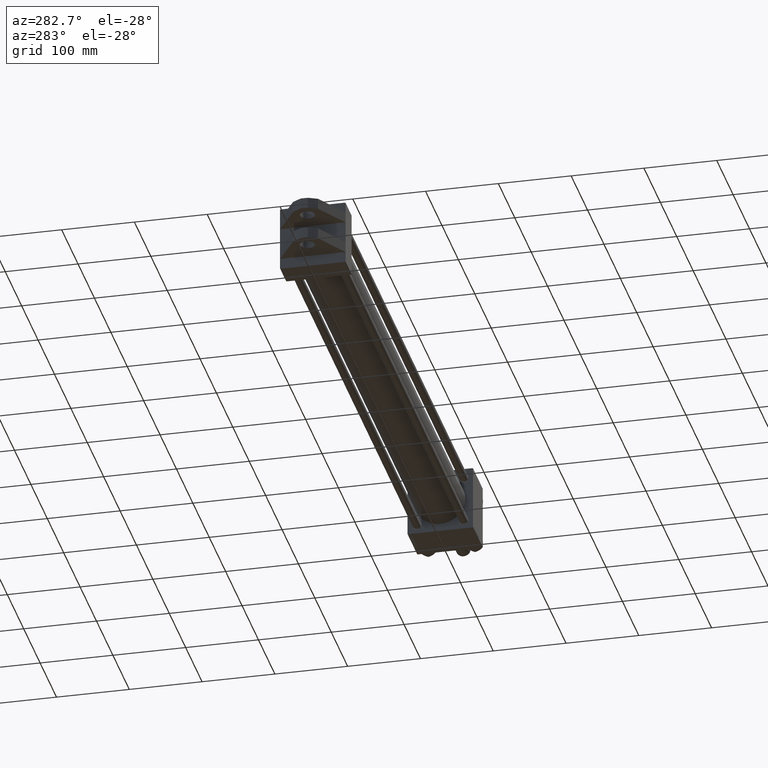
[diagram: clean part render]
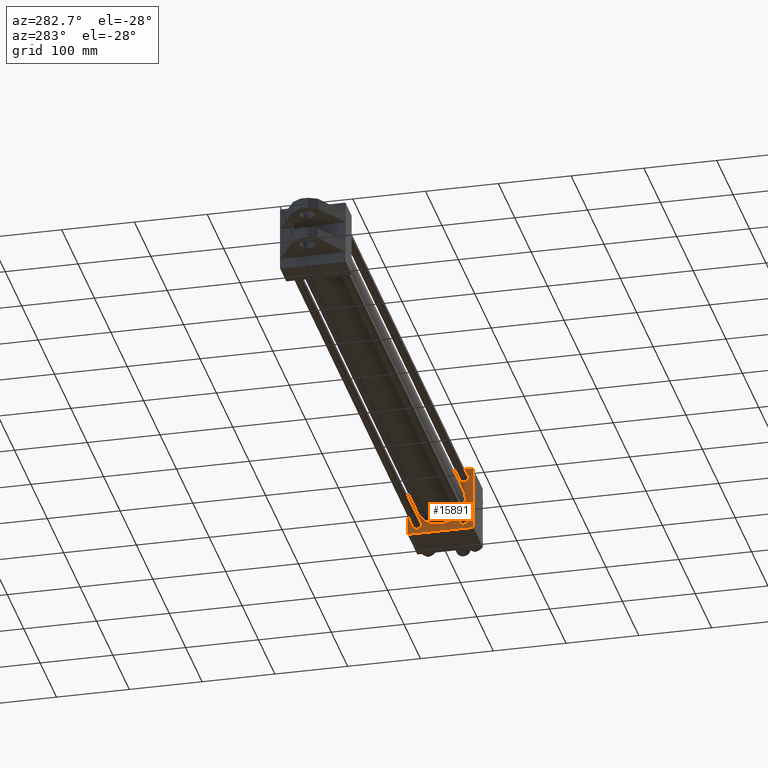
[diagram: same view with one face highlighted and labeled with its STEP entity id]
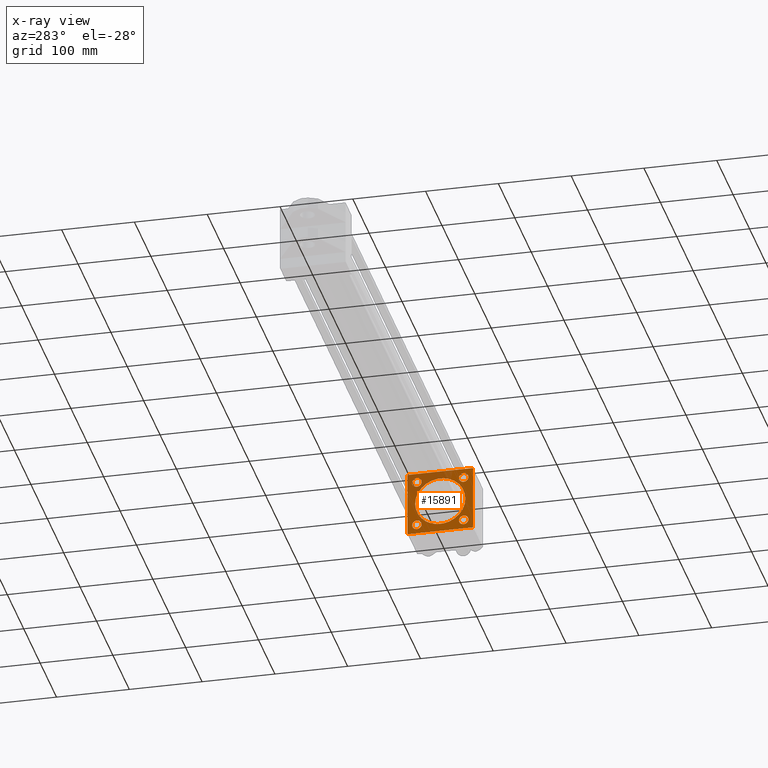
[diagram: x-ray of the same camera — body ghosted, the highlighted face saturated]
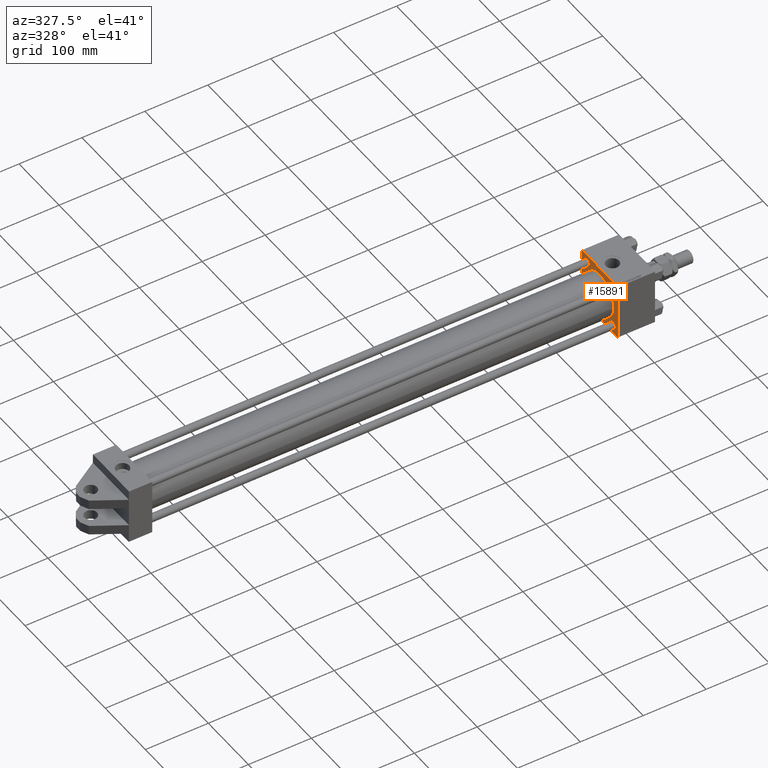
[diagram: same view with one face highlighted and labeled with its STEP entity id]
A machine part, auxiliary view. The second image highlights one B-rep face of the part: STEP entity #15891.
The next image is the same camera in x-ray: the body ghosted, the highlighted face saturated — about 25% of this face is hidden behind the body in this view.
A second angle (auxiliary view) of the same face is appended — the face is thin or edge-on in the first view.
In plain terms, the highlighted planar face has unit normal (-1, 0, -0).
Its self-contained STEP definition (entity closure, byte-faithful):
#728 = DIRECTION ( 'NONE',  ( 0.000000000000000000, 0.000000000000000000, 1.000000000000000000 ) ) ;
#884 = ORIENTED_EDGE ( 'NONE', *, *, #33320, .T. ) ;
#898 = EDGE_CURVE ( 'NONE', #13371, #39654, #19193, .T. ) ;
#1060 = DIRECTION ( 'NONE',  ( 0.000000000000000000, 0.000000000000000000, 1.000000000000000000 ) ) ;
#1383 = CIRCLE ( 'NONE', #33724, 34.49999999999999289 ) ;
#1980 = EDGE_CURVE ( 'NONE', #39654, #19199, #37620, .T. ) ;
#2693 = VERTEX_POINT ( 'NONE', #10979 ) ;
#2832 = ORIENTED_EDGE ( 'NONE', *, *, #4180, .T. ) ;
#2844 = VERTEX_POINT ( 'NONE', #38627 ) ;
#3756 = DIRECTION ( 'NONE',  ( 1.000000000000000000, 0.000000000000000000, 0.000000000000000000 ) ) ;
#4180 = EDGE_CURVE ( 'NONE', #6889, #25147, #1383, .T. ) ;
#4351 = DIRECTION ( 'NONE',  ( 0.000000000000000000, 0.000000000000000000, 1.000000000000000000 ) ) ;
#4419 = CARTESIAN_POINT ( 'NONE',  ( 777.0000000000000000, 44.75000000000496669, -44.74999999999503331 ) ) ;
#4581 = EDGE_LOOP ( 'NONE', ( #2832, #8012 ) ) ;
#5031 = DIRECTION ( 'NONE',  ( 1.000000000000000000, 0.000000000000000000, 0.000000000000000000 ) ) ;
#5318 = CARTESIAN_POINT ( 'NONE',  ( 777.0000000000000000, 32.14999999999999147, -25.65000000000017266 ) ) ;
#6889 = VERTEX_POINT ( 'NONE', #31429 ) ;
#7524 = FACE_BOUND ( 'NONE', #4581, .T. ) ;
#7724 = DIRECTION ( 'NONE',  ( 1.000000000000000000, 0.000000000000000000, 0.000000000000000000 ) ) ;
#8012 = ORIENTED_EDGE ( 'NONE', *, *, #31723, .T. ) ;
#8383 = CIRCLE ( 'NONE', #32405, 6.499999999999950262 ) ;
#8454 = VECTOR ( 'NONE', #40364, 1000.000000000000000 ) ;
#8519 = CARTESIAN_POINT ( 'NONE',  ( 777.0000000000000000, -32.14999999999999147, 32.14999999999999147 ) ) ;
#8777 = VERTEX_POINT ( 'NONE', #25383 ) ;
#9040 = EDGE_CURVE ( 'NONE', #11871, #28193, #48689, .T. ) ;
#9135 = CARTESIAN_POINT ( 'NONE',  ( 777.0000000000000000, -44.74999999999996447, 44.74999999999996447 ) ) ;
#9295 = DIRECTION ( 'NONE',  ( 1.000000000000000000, 0.000000000000000000, 0.000000000000000000 ) ) ;
#9300 = DIRECTION ( 'NONE',  ( 0.000000000000000000, 0.000000000000000000, 1.000000000000000000 ) ) ;
#9556 = CARTESIAN_POINT ( 'NONE',  ( 777.0000000000000000, 32.14999999999999147, 25.65000000000005542 ) ) ;
#9916 = AXIS2_PLACEMENT_3D ( 'NONE', #23348, #28270, #27495 ) ;
#9969 = CARTESIAN_POINT ( 'NONE',  ( 777.0000000000000000, 44.74999999999504041, 44.75000000000498090 ) ) ;
#10094 = DIRECTION ( 'NONE',  ( 0.000000000000000000, 7.709882115452478166E-17, -1.000000000000000000 ) ) ;
#10171 = ORIENTED_EDGE ( 'NONE', *, *, #20579, .T. ) ;
#10589 = DIRECTION ( 'NONE',  ( 1.000000000000000000, 0.000000000000000000, 0.000000000000000000 ) ) ;
#10604 = EDGE_CURVE ( 'NONE', #38870, #17387, #40564, .T. ) ;
#10644 = CARTESIAN_POINT ( 'NONE',  ( 777.0000000000000000, -32.15000000000001279, -32.15000000000000568 ) ) ;
#10979 = CARTESIAN_POINT ( 'NONE',  ( 777.0000000000000000, -45.00000000000000000, 44.49999999999992895 ) ) ;
#11725 = VERTEX_POINT ( 'NONE', #34663 ) ;
#11871 = VERTEX_POINT ( 'NONE', #33341 ) ;
#11897 = CARTESIAN_POINT ( 'NONE',  ( 777.0000000000000000, 32.14999999999999147, -38.64999999999983515 ) ) ;
#12916 = VECTOR ( 'NONE', #41503, 1000.000000000000000 ) ;
#13168 = CARTESIAN_POINT ( 'NONE',  ( 777.0000000000000000, 45.00000000000001421, -44.49999999999991473 ) ) ;
#13335 = CARTESIAN_POINT ( 'NONE',  ( 777.0000000000000000, -3.469446951953614189E-15, 0.000000000000000000 ) ) ;
#13371 = VERTEX_POINT ( 'NONE', #45414 ) ;
#13388 = ORIENTED_EDGE ( 'NONE', *, *, #9040, .T. ) ;
#13435 = CARTESIAN_POINT ( 'NONE',  ( 777.0000000000000000, 7.555845051047534515E-16, -34.49999999999999289 ) ) ;
#14071 = AXIS2_PLACEMENT_3D ( 'NONE', #16517, #31584, #47163 ) ;
#15001 = CARTESIAN_POINT ( 'NONE',  ( 777.0000000000000000, -32.15000000000001279, -32.15000000000000568 ) ) ;
#15680 = VERTEX_POINT ( 'NONE', #23926 ) ;
#15891 = ADVANCED_FACE ( 'NONE', ( #24380, #36320, #31918, #19717, #7524, #39196 ), #19973, .T. ) ;
#15932 = CIRCLE ( 'NONE', #44958, 6.499999999999950262 ) ;
#16088 = EDGE_CURVE ( 'NONE', #2693, #19199, #46687, .T. ) ;
#16517 = CARTESIAN_POINT ( 'NONE',  ( 777.0000000000000000, 32.14999999999999147, -32.15000000000000568 ) ) ;
#16788 = EDGE_CURVE ( 'NONE', #2693, #15680, #24712, .T. ) ;
#16867 = ORIENTED_EDGE ( 'NONE', *, *, #17987, .T. ) ;
#17119 = ORIENTED_EDGE ( 'NONE', *, *, #898, .T. ) ;
#17125 = ORIENTED_EDGE ( 'NONE', *, *, #10604, .T. ) ;
#17387 = VERTEX_POINT ( 'NONE', #5318 ) ;
#17877 = CARTESIAN_POINT ( 'NONE',  ( 777.0000000000000000, -32.14999999999999147, 32.14999999999999147 ) ) ;
#17933 = CARTESIAN_POINT ( 'NONE',  ( 777.0000000000000000, -44.49999999999990052, -45.00000000000000000 ) ) ;
#17987 = EDGE_CURVE ( 'NONE', #2844, #31919, #26576, .T. ) ;
#18414 = ORIENTED_EDGE ( 'NONE', *, *, #22953, .T. ) ;
#18537 = DIRECTION ( 'NONE',  ( 0.000000000000000000, 0.7071067811866260655, -0.7071067811864690800 ) ) ;
#18584 = CIRCLE ( 'NONE', #40967, 6.499999999999839240 ) ;
#18655 = CARTESIAN_POINT ( 'NONE',  ( 777.0000000000000000, -45.00000000000000000, 44.99999999999998579 ) ) ;
#18967 = EDGE_CURVE ( 'NONE', #36527, #29870, #8383, .T. ) ;
#19193 = LINE ( 'NONE', #23327, #41052 ) ;
#19199 = VERTEX_POINT ( 'NONE', #44284 ) ;
#19717 = FACE_BOUND ( 'NONE', #48861, .T. ) ;
#19968 = CIRCLE ( 'NONE', #37415, 6.499999999999950262 ) ;
#19973 = PLANE ( 'NONE',  #9916 ) ;
#20579 = EDGE_CURVE ( 'NONE', #11725, #11871, #49954, .T. ) ;
#20677 = VECTOR ( 'NONE', #10094, 1000.000000000000000 ) ;
#21302 = EDGE_CURVE ( 'NONE', #11725, #15680, #39083, .T. ) ;
#21694 = VECTOR ( 'NONE', #18537, 1000.000000000000114 ) ;
#21768 = CIRCLE ( 'NONE', #42492, 6.499999999999832134 ) ;
#22200 = AXIS2_PLACEMENT_3D ( 'NONE', #35767, #43808, #4351 ) ;
#22532 = CARTESIAN_POINT ( 'NONE',  ( 777.0000000000000000, -44.74999999999471356, -44.75000000000527223 ) ) ;
#22953 = EDGE_CURVE ( 'NONE', #17387, #38870, #21768, .T. ) ;
#23327 = CARTESIAN_POINT ( 'NONE',  ( 777.0000000000000000, 45.00000000000001421, -45.00000000000000000 ) ) ;
#23348 = CARTESIAN_POINT ( 'NONE',  ( 777.0000000000000000, 0.000000000000000000, 0.000000000000000000 ) ) ;
#23845 = CIRCLE ( 'NONE', #22200, 6.499999999999950262 ) ;
#23921 = CARTESIAN_POINT ( 'NONE',  ( 777.0000000000000000, 32.14999999999999147, 32.15000000000000568 ) ) ;
#23926 = CARTESIAN_POINT ( 'NONE',  ( 777.0000000000000000, -44.49999999999991473, 44.99999999999998579 ) ) ;
#24306 = ORIENTED_EDGE ( 'NONE', *, *, #16088, .F. ) ;
#24380 = FACE_BOUND ( 'NONE', #40370, .T. ) ;
#24712 = LINE ( 'NONE', #9135, #36473 ) ;
#25147 = VERTEX_POINT ( 'NONE', #13435 ) ;
#25383 = CARTESIAN_POINT ( 'NONE',  ( 777.0000000000000000, 32.14999999999999147, 38.64999999999995595 ) ) ;
#26154 = CARTESIAN_POINT ( 'NONE',  ( 777.0000000000000000, -3.469446951953614189E-15, 0.000000000000000000 ) ) ;
#26326 = EDGE_CURVE ( 'NONE', #31919, #2844, #18584, .T. ) ;
#26459 = DIRECTION ( 'NONE',  ( 0.000000000000000000, 0.000000000000000000, 1.000000000000000000 ) ) ;
#26576 = CIRCLE ( 'NONE', #44813, 6.499999999999839240 ) ;
#27413 = CARTESIAN_POINT ( 'NONE',  ( 777.0000000000000000, -32.15000000000001279, -38.64999999999984226 ) ) ;
#27439 = ORIENTED_EDGE ( 'NONE', *, *, #1980, .T. ) ;
#27495 = DIRECTION ( 'NONE',  ( -0.000000000000000000, 0.000000000000000000, 1.000000000000000000 ) ) ;
#27923 = ORIENTED_EDGE ( 'NONE', *, *, #37676, .T. ) ;
#28193 = VERTEX_POINT ( 'NONE', #13168 ) ;
#28270 = DIRECTION ( 'NONE',  ( -1.000000000000000000, 0.000000000000000000, -0.000000000000000000 ) ) ;
#29606 = CARTESIAN_POINT ( 'NONE',  ( 777.0000000000000000, -32.14999999999999147, 38.64999999999994174 ) ) ;
#29870 = VERTEX_POINT ( 'NONE', #29606 ) ;
#29991 = CIRCLE ( 'NONE', #41630, 34.49999999999999289 ) ;
#30210 = EDGE_CURVE ( 'NONE', #29870, #36527, #19968, .T. ) ;
#30545 = ORIENTED_EDGE ( 'NONE', *, *, #21302, .F. ) ;
#30601 = ORIENTED_EDGE ( 'NONE', *, *, #16788, .T. ) ;
#30967 = EDGE_LOOP ( 'NONE', ( #884, #36902 ) ) ;
#31289 = CARTESIAN_POINT ( 'NONE',  ( 777.0000000000000000, 45.00000000000001421, 45.00000000000000000 ) ) ;
#31429 = CARTESIAN_POINT ( 'NONE',  ( 777.0000000000000000, -3.469446951953614189E-15, 34.49999999999999289 ) ) ;
#31584 = DIRECTION ( 'NONE',  ( 1.000000000000000000, 0.000000000000000000, 0.000000000000000000 ) ) ;
#31600 = VERTEX_POINT ( 'NONE', #9556 ) ;
#31682 = DIRECTION ( 'NONE',  ( -0.000000000000000000, -0.7071067811864690800, -0.7071067811866260655 ) ) ;
#31723 = EDGE_CURVE ( 'NONE', #25147, #6889, #29991, .T. ) ;
#31918 = FACE_BOUND ( 'NONE', #43745, .T. ) ;
#31919 = VERTEX_POINT ( 'NONE', #27413 ) ;
#32240 = CARTESIAN_POINT ( 'NONE',  ( 777.0000000000000000, -32.14999999999999147, 25.65000000000004121 ) ) ;
#32344 = DIRECTION ( 'NONE',  ( 0.000000000000000000, 0.000000000000000000, -1.000000000000000000 ) ) ;
#32405 = AXIS2_PLACEMENT_3D ( 'NONE', #17877, #49022, #9300 ) ;
#32627 = ORIENTED_EDGE ( 'NONE', *, *, #30210, .T. ) ;
#33320 = EDGE_CURVE ( 'NONE', #8777, #31600, #15932, .T. ) ;
#33341 = CARTESIAN_POINT ( 'NONE',  ( 777.0000000000000000, 45.00000000000001421, 44.50000000000005684 ) ) ;
#33724 = AXIS2_PLACEMENT_3D ( 'NONE', #13335, #5031, #37497 ) ;
#34663 = CARTESIAN_POINT ( 'NONE',  ( 777.0000000000000000, 44.49999999999995737, 45.00000000000000000 ) ) ;
#34728 = DIRECTION ( 'NONE',  ( 0.000000000000000000, 0.000000000000000000, 1.000000000000000000 ) ) ;
#34921 = CARTESIAN_POINT ( 'NONE',  ( 777.0000000000000000, 32.14999999999999147, -32.15000000000000568 ) ) ;
#35062 = LINE ( 'NONE', #4419, #50811 ) ;
#35767 = CARTESIAN_POINT ( 'NONE',  ( 777.0000000000000000, 32.14999999999999147, 32.15000000000000568 ) ) ;
#36320 = FACE_BOUND ( 'NONE', #30967, .T. ) ;
#36473 = VECTOR ( 'NONE', #47831, 1000.000000000000114 ) ;
#36527 = VERTEX_POINT ( 'NONE', #32240 ) ;
#36902 = ORIENTED_EDGE ( 'NONE', *, *, #49267, .T. ) ;
#37011 = CARTESIAN_POINT ( 'NONE',  ( 777.0000000000000000, 45.00000000000001421, 45.00000000000000000 ) ) ;
#37415 = AXIS2_PLACEMENT_3D ( 'NONE', #8519, #9295, #728 ) ;
#37497 = DIRECTION ( 'NONE',  ( 0.000000000000000000, 0.000000000000000000, -1.000000000000000000 ) ) ;
#37620 = LINE ( 'NONE', #22532, #12916 ) ;
#37676 = EDGE_CURVE ( 'NONE', #28193, #13371, #35062, .T. ) ;
#38627 = CARTESIAN_POINT ( 'NONE',  ( 777.0000000000000000, -32.15000000000001279, -25.65000000000016556 ) ) ;
#38870 = VERTEX_POINT ( 'NONE', #11897 ) ;
#39083 = LINE ( 'NONE', #31289, #8454 ) ;
#39196 = FACE_OUTER_BOUND ( 'NONE', #47647, .T. ) ;
#39654 = VERTEX_POINT ( 'NONE', #17933 ) ;
#39769 = DIRECTION ( 'NONE',  ( 1.000000000000000000, 0.000000000000000000, 0.000000000000000000 ) ) ;
#40364 = DIRECTION ( 'NONE',  ( 0.000000000000000000, -1.000000000000000000, -1.541976423090495140E-16 ) ) ;
#40370 = EDGE_LOOP ( 'NONE', ( #32627, #47681 ) ) ;
#40564 = CIRCLE ( 'NONE', #14071, 6.499999999999832134 ) ;
#40967 = AXIS2_PLACEMENT_3D ( 'NONE', #15001, #7724, #34728 ) ;
#41052 = VECTOR ( 'NONE', #42826, 1000.000000000000000 ) ;
#41358 = VECTOR ( 'NONE', #32344, 1000.000000000000000 ) ;
#41503 = DIRECTION ( 'NONE',  ( 0.000000000000000000, -0.7071067811866309505, 0.7071067811864640840 ) ) ;
#41630 = AXIS2_PLACEMENT_3D ( 'NONE', #26154, #10589, #46662 ) ;
#42214 = DIRECTION ( 'NONE',  ( 0.000000000000000000, 0.000000000000000000, 1.000000000000000000 ) ) ;
#42492 = AXIS2_PLACEMENT_3D ( 'NONE', #34921, #3756, #42214 ) ;
#42826 = DIRECTION ( 'NONE',  ( 0.000000000000000000, -1.000000000000000000, 0.000000000000000000 ) ) ;
#43745 = EDGE_LOOP ( 'NONE', ( #18414, #17125 ) ) ;
#43808 = DIRECTION ( 'NONE',  ( 1.000000000000000000, 0.000000000000000000, 0.000000000000000000 ) ) ;
#44284 = CARTESIAN_POINT ( 'NONE',  ( 777.0000000000000000, -44.99999999999999289, -44.50000000000002842 ) ) ;
#44813 = AXIS2_PLACEMENT_3D ( 'NONE', #10644, #49857, #26459 ) ;
#44958 = AXIS2_PLACEMENT_3D ( 'NONE', #23921, #39769, #1060 ) ;
#45414 = CARTESIAN_POINT ( 'NONE',  ( 777.0000000000000000, 44.50000000000006395, -45.00000000000000000 ) ) ;
#46358 = ORIENTED_EDGE ( 'NONE', *, *, #26326, .T. ) ;
#46662 = DIRECTION ( 'NONE',  ( 0.000000000000000000, 0.000000000000000000, -1.000000000000000000 ) ) ;
#46687 = LINE ( 'NONE', #18655, #20677 ) ;
#47163 = DIRECTION ( 'NONE',  ( 0.000000000000000000, 0.000000000000000000, 1.000000000000000000 ) ) ;
#47647 = EDGE_LOOP ( 'NONE', ( #17119, #27439, #24306, #30601, #30545, #10171, #13388, #27923 ) ) ;
#47681 = ORIENTED_EDGE ( 'NONE', *, *, #18967, .T. ) ;
#47831 = DIRECTION ( 'NONE',  ( -0.000000000000000000, 0.7071067811865474617, 0.7071067811865474617 ) ) ;
#48689 = LINE ( 'NONE', #37011, #41358 ) ;
#48861 = EDGE_LOOP ( 'NONE', ( #16867, #46358 ) ) ;
#49022 = DIRECTION ( 'NONE',  ( 1.000000000000000000, 0.000000000000000000, 0.000000000000000000 ) ) ;
#49267 = EDGE_CURVE ( 'NONE', #31600, #8777, #23845, .T. ) ;
#49857 = DIRECTION ( 'NONE',  ( 1.000000000000000000, 0.000000000000000000, 0.000000000000000000 ) ) ;
#49954 = LINE ( 'NONE', #9969, #21694 ) ;
#50811 = VECTOR ( 'NONE', #31682, 1000.000000000000114 ) ;